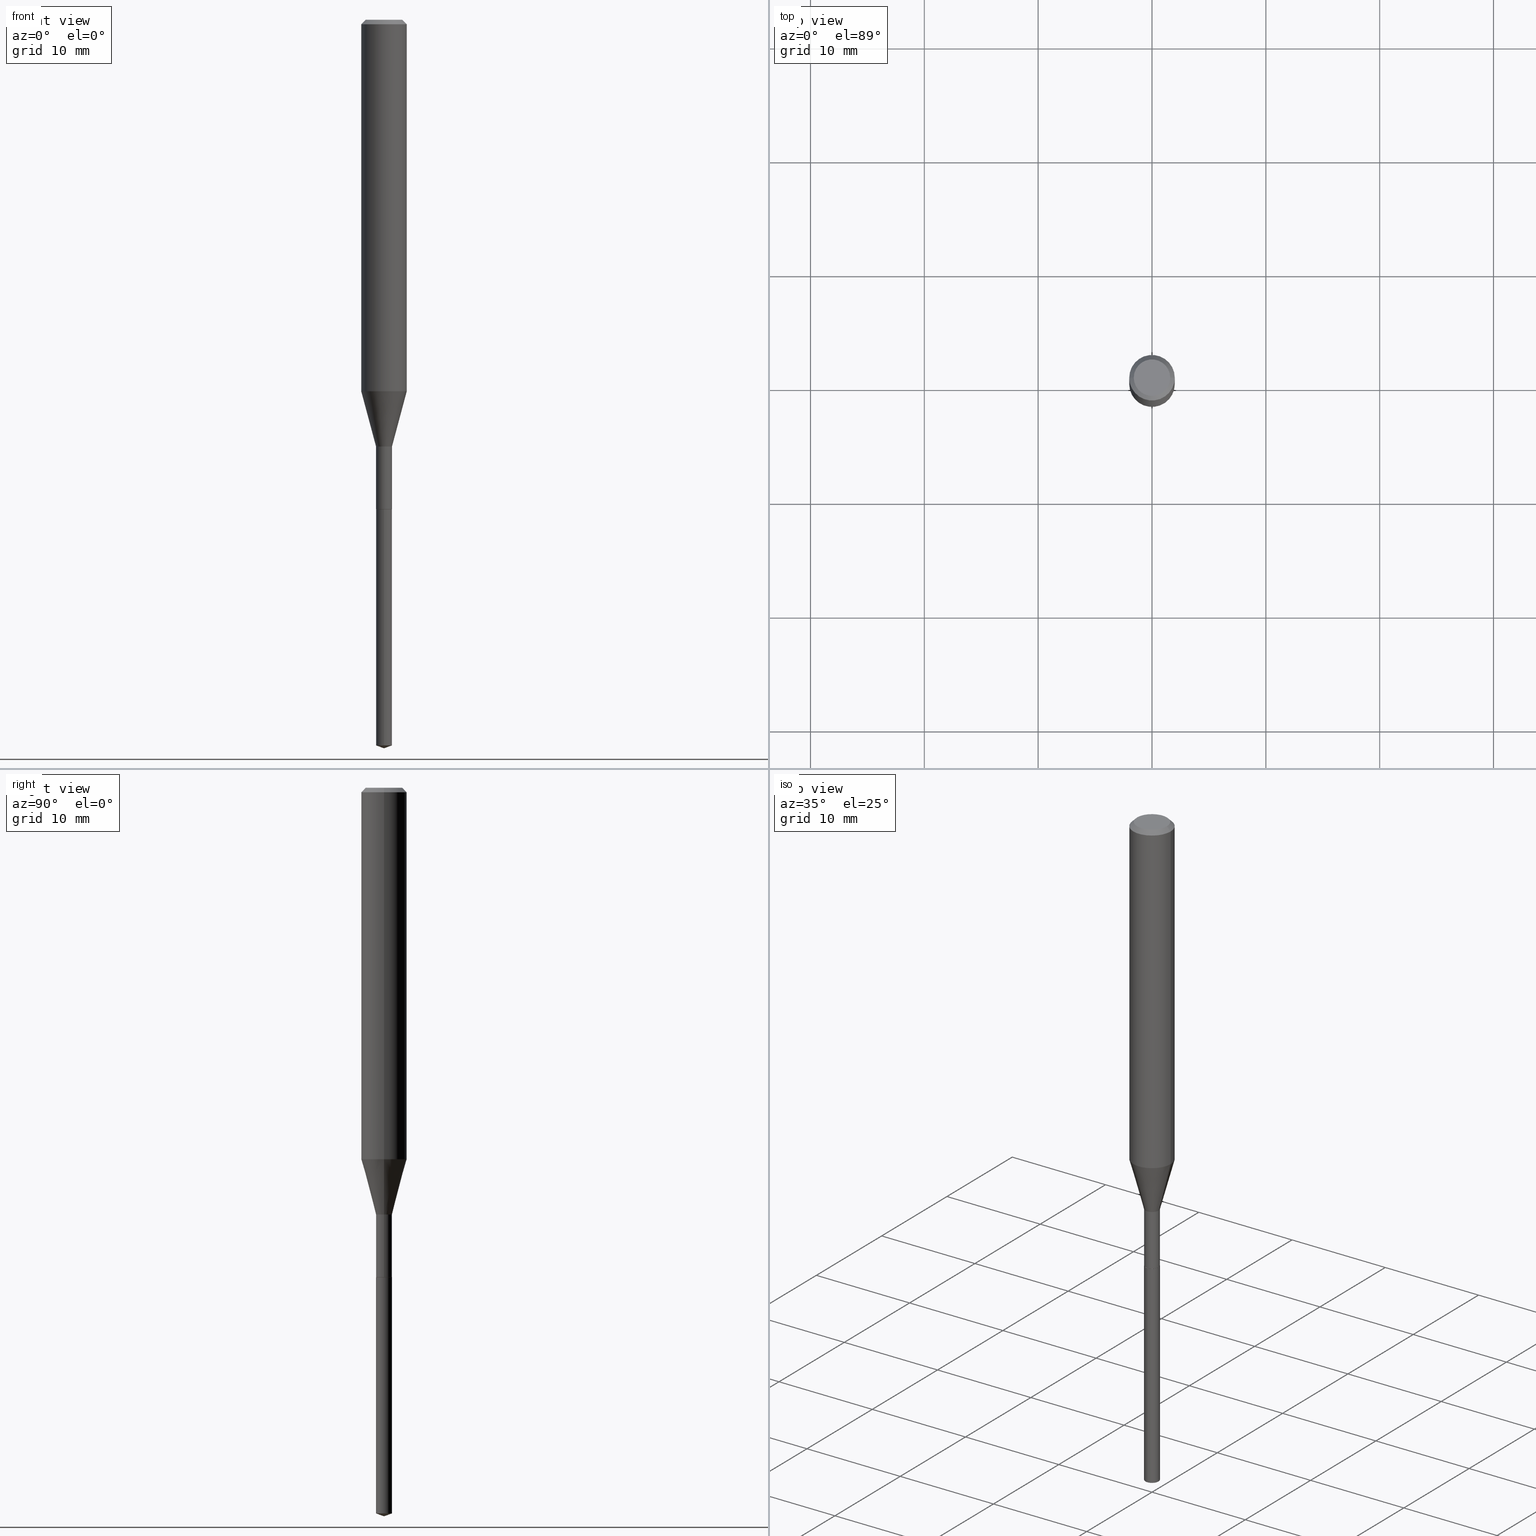
[diagram: canonical four-view strip — front | top / right | iso, engineering-drawing reading convention]
A machine part, canonical four-view strip (front | top / right | iso — engineering-drawing reading convention). The complete STEP part file that produces these views, byte-faithful:
ISO-10303-21;
HEADER;
FILE_DESCRIPTION (( 'STEP AP203' ),
    '1' );
FILE_NAME ('06035.STEP',
    '2024-04-23T19:05:51',
    ( '' ),
    ( '' ),
    'SwSTEP 2.0',
    'SolidWorks 2023',
    '' );
FILE_SCHEMA (( 'CONFIG_CONTROL_DESIGN' ));
ENDSEC;

DATA;
#1 = ORIENTED_EDGE ( 'NONE', *, *, #261, .T. ) ;
#2 = LINE ( 'NONE', #145, #117 ) ;
#3 = PERSON_AND_ORGANIZATION ( #426, #442 ) ;
#4 = ORIENTED_EDGE ( 'NONE', *, *, #261, .F. ) ;
#5 = CIRCLE ( 'NONE', #244, 0.02754999999999999116 ) ;
#6 = ORIENTED_EDGE ( 'NONE', *, *, #220, .F. ) ;
#7 = APPROVAL ( #66, 'UNSPECIFIED' ) ;
#8 = ORIENTED_EDGE ( 'NONE', *, *, #296, .F. ) ;
#9 = EDGE_CURVE ( 'NONE', #305, #456, #158, .T. ) ;
#10 = CARTESIAN_POINT ( 'NONE',  ( -0.02705000000000000113, -5.718526948504453054E-15, -1.692899999999999849 ) ) ;
#11 = AXIS2_PLACEMENT_3D ( 'NONE', #76, #154, #313 ) ;
#12 = AXIS2_PLACEMENT_3D ( 'NONE', #222, #228, #95 ) ;
#13 = DIRECTION ( 'NONE',  ( 1.000000000000000000, -6.982962677686258822E-15, 0.000000000000000000 ) ) ;
#14 = CALENDAR_DATE ( 2024, 23, 4 ) ;
#15 = CARTESIAN_POINT ( 'NONE',  ( -0.07875000000000008382, 5.595524044110794920E-16, -3.873661383575742696E-30 ) ) ;
#16 = ORIENTED_EDGE ( 'NONE', *, *, #390, .F. ) ;
#17 = CARTESIAN_POINT ( 'NONE',  ( 4.139934141990817236E-29, -5.910728758527560286E-15, -1.692899999999999849 ) ) ;
#18 = VERTEX_POINT ( 'NONE', #246 ) ;
#19 = DIRECTION ( 'NONE',  ( -2.438088387897960049E-29, 3.491481338843145188E-15, 1.000000000000000000 ) ) ;
#20 = VECTOR ( 'NONE', #267, 39.37007874015748854 ) ;
#21 = EDGE_CURVE ( 'NONE', #69, #209, #286, .T. ) ;
#22 = CARTESIAN_POINT ( 'NONE',  ( 4.139934141990817236E-29, -5.910728758527560286E-15, -1.692899999999999849 ) ) ;
#23 = AXIS2_PLACEMENT_3D ( 'NONE', #386, #290, #45 ) ;
#24 = AXIS2_PLACEMENT_3D ( 'NONE', #377, #268, #303 ) ;
#25 = CALENDAR_DATE ( 2024, 23, 4 ) ;
#26 = ADVANCED_FACE ( 'NONE', ( #465 ), #433, .T. ) ;
#27 = DIMENSIONAL_EXPONENTS ( 1.000000000000000000, 0.000000000000000000, 0.000000000000000000, 0.000000000000000000, 0.000000000000000000, 0.000000000000000000, 0.000000000000000000 ) ;
#28 = APPROVAL_DATE_TIME ( #331, #74 ) ;
#29 = DIRECTION ( 'NONE',  ( 2.445468806185136597E-29, -3.491481338843145583E-15, -1.000000000000000000 ) ) ;
#30 = APPROVAL_ROLE ( '' ) ;
#31 = DIRECTION ( 'NONE',  ( -2.444907786698359005E-29, 3.492284750679457290E-15, 1.000000000000000000 ) ) ;
#32 = ORIENTED_EDGE ( 'NONE', *, *, #79, .T. ) ;
#33 = CARTESIAN_POINT ( 'NONE',  ( 0.07875000000000000056, -6.048991419545733705E-16, -0.01575000000000009032 ) ) ;
#34 = VECTOR ( 'NONE', #243, 39.37007874015748143 ) ;
#35 = VERTEX_POINT ( 'NONE', #281 ) ;
#36 = DIRECTION ( 'NONE',  ( -2.445468806185136597E-29, 3.491481338843145583E-15, 1.000000000000000000 ) ) ;
#37 = ORIENTED_EDGE ( 'NONE', *, *, #21, .T. ) ;
#38 = ORIENTED_EDGE ( 'NONE', *, *, #399, .F. ) ;
#39 = CIRCLE ( 'NONE', #352, 0.02755000000000000157 ) ;
#40 = CYLINDRICAL_SURFACE ( 'NONE', #98, 0.07875000000000008382 ) ;
#41 = CC_DESIGN_APPROVAL ( #7, ( #131 ) ) ;
#42 = CARTESIAN_POINT ( 'NONE',  ( 6.136867880703221821E-29, -8.763131324286595835E-15, -2.509672620045966251 ) ) ;
#43 = CARTESIAN_POINT ( 'NONE',  ( -0.02754999999999998075, 1.957545237019074645E-16, -1.355166617365225689E-30 ) ) ;
#44 = EDGE_CURVE ( 'NONE', #406, #128, #323, .T. ) ;
#45 = DIRECTION ( 'NONE',  ( -6.982962677686265922E-15, -1.000000000000000000, 0.000000000000000000 ) ) ;
#46 = EDGE_LOOP ( 'NONE', ( #336, #121, #190, #269 ) ) ;
#47 = PLANE ( 'NONE',  #301 ) ;
#48 = DIRECTION ( 'NONE',  ( 1.000000000000000000, 0.000000000000000000, 0.000000000000000000 ) ) ;
#49 = CONICAL_SURFACE ( 'NONE', #330, 0.07875000000000000056, 0.7853981633974456145 ) ;
#50 = DIRECTION ( 'NONE',  ( -2.444907786698359005E-29, 3.492284750679457290E-15, 1.000000000000000000 ) ) ;
#51 = AXIS2_PLACEMENT_3D ( 'NONE', #70, #36, #259 ) ;
#52 = CARTESIAN_POINT ( 'NONE',  ( -1.923806217701952372E-16, -0.02755000000000876192, -2.509672620045966251 ) ) ;
#53 = DIRECTION ( 'NONE',  ( -2.445468806185136597E-29, 3.491481338843145583E-15, 1.000000000000000000 ) ) ;
#54 = CARTESIAN_POINT ( 'NONE',  ( 4.139934141990817236E-29, -5.910728758527560286E-15, -1.692899999999999849 ) ) ;
#55 = DIRECTION ( 'NONE',  ( -0.7071067811865454633, 2.468850131082235761E-15, -0.7071067811865493491 ) ) ;
#56 = ORIENTED_EDGE ( 'NONE', *, *, #346, .F. ) ;
#57 = CYLINDRICAL_SURFACE ( 'NONE', #363, 0.02754999999999998075 ) ;
#58 = EDGE_LOOP ( 'NONE', ( #448, #387, #277, #380 ) ) ;
#59 = PERSON_AND_ORGANIZATION ( #426, #442 ) ;
#60 = AXIS2_PLACEMENT_3D ( 'NONE', #224, #29, #179 ) ;
#61 = EDGE_CURVE ( 'NONE', #425, #438, #461, .T. ) ;
#62 = DATE_AND_TIME ( #126, #91 ) ;
#63 = DIRECTION ( 'NONE',  ( -2.445468806185136877E-29, 3.491481338843145188E-15, 1.000000000000000000 ) ) ;
#64 = ADVANCED_FACE ( 'NONE', ( #205 ), #40, .T. ) ;
#65 = AXIS2_PLACEMENT_3D ( 'NONE', #22, #297, #404 ) ;
#66 = APPROVAL_STATUS ( 'not_yet_approved' ) ;
#67 = CYLINDRICAL_SURFACE ( 'NONE', #217, 0.07875000000000008382 ) ;
#68 = CARTESIAN_POINT ( 'NONE',  ( 0.02705000000000000113, -6.099617898958974072E-15, -1.692899999999999849 ) ) ;
#69 = VERTEX_POINT ( 'NONE', #93 ) ;
#70 = CARTESIAN_POINT ( 'NONE',  ( 3.142229329679264219E-29, -4.486270705720130706E-15, -1.284918998652472943 ) ) ;
#71 = VECTOR ( 'NONE', #462, 39.37007874015748854 ) ;
#72 = EDGE_CURVE ( 'NONE', #456, #35, #39, .T. ) ;
#73 = VERTEX_POINT ( 'NONE', #204 ) ;
#74 = APPROVAL ( #443, 'UNSPECIFIED' ) ;
#75 = VERTEX_POINT ( 'NONE', #161 ) ;
#76 = CARTESIAN_POINT ( 'NONE',  ( -9.009482817470551861E-28, 1.286933758269121569E-13, 36.85037874015748116 ) ) ;
#77 = DIRECTION ( 'NONE',  ( 1.000000000000000000, -6.982962677686272233E-15, 0.000000000000000000 ) ) ;
#78 = CARTESIAN_POINT ( 'NONE',  ( 0.06300000000000000044, -5.137332111354472216E-16, -3.855188123712532709E-18 ) ) ;
#79 = EDGE_CURVE ( 'NONE', #140, #180, #338, .T. ) ;
#80 = AXIS2_PLACEMENT_3D ( 'NONE', #385, #231, #118 ) ;
#81 =( GEOMETRIC_REPRESENTATION_CONTEXT ( 3 ) GLOBAL_UNCERTAINTY_ASSIGNED_CONTEXT ( ( #146 ) ) GLOBAL_UNIT_ASSIGNED_CONTEXT ( ( #223, #218, #332 ) ) REPRESENTATION_CONTEXT ( 'NONE', 'WORKASPACE' ) );
#82 = CARTESIAN_POINT ( 'NONE',  ( 3.609511957929261074E-29, -5.153426456132482850E-15, -1.475999999999999757 ) ) ;
#83 = CARTESIAN_POINT ( 'NONE',  ( 0.000000000000000000, 0.000000000000000000, 0.000000000000000000 ) ) ;
#84 = DIRECTION ( 'NONE',  ( 1.000000000000000000, -6.982962677686273810E-15, 0.000000000000000000 ) ) ;
#85 = COORDINATED_UNIVERSAL_TIME_OFFSET ( 5, 0, .BEHIND. ) ;
#86 = FACE_OUTER_BOUND ( 'NONE', #149, .T. ) ;
#87 = LINE ( 'NONE', #249, #122 ) ;
#88 = ORIENTED_EDGE ( 'NONE', *, *, #125, .F. ) ;
#89 = DIRECTION ( 'NONE',  ( -1.000000000000000000, 6.982962677686265922E-15, 0.000000000000000000 ) ) ;
#90 = CLOSED_SHELL ( 'NONE', ( #486, #157, #471, #112, #26, #197, #342, #64, #202, #463, #247, #480 ) ) ;
#91 = LOCAL_TIME ( 15, 5, 51.00000000000000000, #322 ) ;
#92 = LINE ( 'NONE', #15, #302 ) ;
#93 = CARTESIAN_POINT ( 'NONE',  ( 1.957545237019690942E-16, 0.02754999999999408963, -1.692899999999999849 ) ) ;
#94 = CALENDAR_DATE ( 2024, 23, 4 ) ;
#95 = DIRECTION ( 'NONE',  ( 1.000000000000000000, -6.982962677686264344E-15, 0.000000000000000000 ) ) ;
#96 = PERSON_AND_ORGANIZATION ( #426, #442 ) ;
#97 = PERSON_AND_ORGANIZATION_ROLE ( 'classification_officer' ) ;
#98 = AXIS2_PLACEMENT_3D ( 'NONE', #129, #213, #253 ) ;
#99 = DIRECTION ( 'NONE',  ( -2.445468806185136597E-29, 3.491481338843145583E-15, 1.000000000000000000 ) ) ;
#100 = ORIENTED_EDGE ( 'NONE', *, *, #150, .F. ) ;
#101 = VECTOR ( 'NONE', #114, 39.37007874015748143 ) ;
#102 = DIRECTION ( 'NONE',  ( 1.000000000000000000, -6.982962677686273810E-15, 0.000000000000000000 ) ) ;
#103 = ORIENTED_EDGE ( 'NONE', *, *, #452, .T. ) ;
#104 = DIRECTION ( 'NONE',  ( 1.000000000000000000, -6.982962677686267499E-15, 4.876176775795935232E-29 ) ) ;
#105 = EDGE_CURVE ( 'NONE', #140, #18, #87, .T. ) ;
#106 = CARTESIAN_POINT ( 'NONE',  ( 0.07875000000000000056, -5.952550484112880131E-16, -0.01575000000000009032 ) ) ;
#107 = CARTESIAN_POINT ( 'NONE',  ( 4.138711407587725556E-29, -5.908983017858139571E-15, -1.692399999999999904 ) ) ;
#108 = ORIENTED_EDGE ( 'NONE', *, *, #72, .F. ) ;
#109 = AXIS2_PLACEMENT_3D ( 'NONE', #422, #430, #395 ) ;
#110 = CC_DESIGN_APPROVAL ( #403, ( #355 ) ) ;
#111 = EDGE_LOOP ( 'NONE', ( #1, #37 ) ) ;
#112 = ADVANCED_FACE ( 'NONE', ( #208 ), #138, .T. ) ;
#113 = EDGE_LOOP ( 'NONE', ( #100, #420, #241, #299 ) ) ;
#114 = DIRECTION ( 'NONE',  ( -2.445468806185136877E-29, 3.491481338843145188E-15, 1.000000000000000000 ) ) ;
#115 = CARTESIAN_POINT ( 'NONE',  ( 0.07875000000000008382, -5.499083108677941345E-16, 3.839989210939303220E-30 ) ) ;
#116 = CIRCLE ( 'NONE', #487, 0.02705000000000000113 ) ;
#117 = VECTOR ( 'NONE', #381, 39.37007874015748143 ) ;
#118 = DIRECTION ( 'NONE',  ( -6.982962677686265922E-15, -1.000000000000000000, 0.000000000000000000 ) ) ;
#119 = APPLICATION_PROTOCOL_DEFINITION ( 'international standard', 'config_control_design', 1994, #316 ) ;
#120 = DIRECTION ( 'NONE',  ( -2.444907786698359005E-29, 3.492284750679457290E-15, 1.000000000000000000 ) ) ;
#121 = ORIENTED_EDGE ( 'NONE', *, *, #79, .F. ) ;
#122 = VECTOR ( 'NONE', #55, 39.37007874015748854 ) ;
#123 = PRODUCT_DEFINITION_FORMATION_WITH_SPECIFIED_SOURCE ( 'ANY', '', #334, .NOT_KNOWN. ) ;
#124 = EDGE_LOOP ( 'NONE', ( #56, #485, #417, #310 ) ) ;
#125 = EDGE_CURVE ( 'NONE', #35, #456, #450, .T. ) ;
#126 = CALENDAR_DATE ( 2024, 23, 4 ) ;
#127 = CARTESIAN_POINT ( 'NONE',  ( 3.609511957929261074E-29, -5.153426456132482850E-15, -1.475999999999999757 ) ) ;
#128 = VERTEX_POINT ( 'NONE', #176 ) ;
#129 = CARTESIAN_POINT ( 'NONE',  ( 0.000000000000000000, 0.000000000000000000, 0.000000000000000000 ) ) ;
#130 = CIRCLE ( 'NONE', #191, 0.02705000000000000113 ) ;
#131 = SECURITY_CLASSIFICATION ( '', '', #215 ) ;
#132 = PERSON_AND_ORGANIZATION ( #426, #442 ) ;
#133 = CC_DESIGN_PERSON_AND_ORGANIZATION_ASSIGNMENT ( #59, #440, ( #355 ) ) ;
#134 = FACE_OUTER_BOUND ( 'NONE', #309, .T. ) ;
#135 = CARTESIAN_POINT ( 'NONE',  ( 4.139934141990817236E-29, -5.910728758527560286E-15, -1.692899999999999849 ) ) ;
#136 = DIRECTION ( 'NONE',  ( 1.000000000000000000, -6.982962677686265922E-15, 0.000000000000000000 ) ) ;
#137 = PRODUCT_RELATED_PRODUCT_CATEGORY ( 'detail', '', ( #334 ) ) ;
#138 = CONICAL_SURFACE ( 'NONE', #167, 0.02754999999999997035, 0.2617993877991499629 ) ;
#139 = CARTESIAN_POINT ( 'NONE',  ( -0.06300000000000000044, 4.674220642376242452E-16, -3.855188123719040041E-18 ) ) ;
#140 = VERTEX_POINT ( 'NONE', #139 ) ;
#141 = LINE ( 'NONE', #68, #307 ) ;
#142 = EDGE_CURVE ( 'NONE', #73, #212, #116, .T. ) ;
#143 = ORIENTED_EDGE ( 'NONE', *, *, #207, .F. ) ;
#144 = DIRECTION ( 'NONE',  ( 0.7071067811866109665, -2.468850131082920887E-15, 0.7071067811864841790 ) ) ;
#145 = CARTESIAN_POINT ( 'NONE',  ( -1.923806217702152546E-16, -0.02755000000000591351, -1.692899999999999849 ) ) ;
#146 = UNCERTAINTY_MEASURE_WITH_UNIT (LENGTH_MEASURE( 1.000000000000000082E-05 ), #223, 'distance_accuracy_value', 'NONE');
#147 = EDGE_LOOP ( 'NONE', ( #378, #400, #103, #478 ) ) ;
#148 = APPROVAL_STATUS ( 'not_yet_approved' ) ;
#149 = EDGE_LOOP ( 'NONE', ( #274, #194, #4, #153 ) ) ;
#150 = EDGE_CURVE ( 'NONE', #128, #425, #264, .T. ) ;
#151 = CIRCLE ( 'NONE', #51, 0.07875000000000015321 ) ;
#152 = ORIENTED_EDGE ( 'NONE', *, *, #9, .F. ) ;
#153 = ORIENTED_EDGE ( 'NONE', *, *, #437, .F. ) ;
#154 = DIRECTION ( 'NONE',  ( -2.444907786698359005E-29, 3.492284750679457290E-15, 1.000000000000000000 ) ) ;
#155 = AXIS2_PLACEMENT_3D ( 'NONE', #169, #326, #477 ) ;
#156 = DIRECTION ( 'NONE',  ( 1.000000000000000000, -6.982962677686266711E-15, 4.876176775795936353E-29 ) ) ;
#157 = ADVANCED_FACE ( 'NONE', ( #221 ), #201, .T. ) ;
#158 = LINE ( 'NONE', #419, #256 ) ;
#159 = PLANE ( 'NONE',  #393 ) ;
#160 = PLANE ( 'NONE',  #155 ) ;
#161 = CARTESIAN_POINT ( 'NONE',  ( -0.02754999999999998769, -5.335450213293403869E-15, -1.692399999999999904 ) ) ;
#162 = DIRECTION ( 'NONE',  ( -2.445468806185136597E-29, 3.491481338843145583E-15, 1.000000000000000000 ) ) ;
#163 = CARTESIAN_POINT ( 'NONE',  ( 3.609511957929261074E-29, -5.153426456132482850E-15, -1.475999999999999757 ) ) ;
#164 = EDGE_CURVE ( 'NONE', #180, #348, #489, .T. ) ;
#165 = ORIENTED_EDGE ( 'NONE', *, *, #294, .F. ) ;
#166 = VECTOR ( 'NONE', #415, 39.37007874015748854 ) ;
#167 = AXIS2_PLACEMENT_3D ( 'NONE', #163, #405, #183 ) ;
#168 = CARTESIAN_POINT ( 'NONE',  ( 0.02705000000000000113, -6.099617898958974072E-15, -1.692899999999999849 ) ) ;
#169 = CARTESIAN_POINT ( 'NONE',  ( 4.713871149261278955E-47, -6.730158695841834933E-33, -1.927594061857933439E-18 ) ) ;
#170 = ORIENTED_EDGE ( 'NONE', *, *, #294, .T. ) ;
#171 = AXIS2_PLACEMENT_3D ( 'NONE', #280, #341, #136 ) ;
#172 = CARTESIAN_POINT ( 'NONE',  ( 4.139934141990817236E-29, -5.910728758527560286E-15, -1.692899999999999849 ) ) ;
#173 = DATE_AND_TIME ( #25, #245 ) ;
#174 = PRODUCT_DEFINITION_SHAPE ( 'NONE', 'NONE',  #355 ) ;
#175 = CC_DESIGN_DATE_AND_TIME_ASSIGNMENT ( #173, #260, ( #131 ) ) ;
#176 = CARTESIAN_POINT ( 'NONE',  ( -0.02754999999999997035, -5.335450213293403869E-15, -1.475999999999999757 ) ) ;
#177 = ORIENTED_EDGE ( 'NONE', *, *, #452, .F. ) ;
#178 = COORDINATED_UNIVERSAL_TIME_OFFSET ( 5, 0, .BEHIND. ) ;
#179 = DIRECTION ( 'NONE',  ( -1.000000000000000000, 6.982962677686265922E-15, 0.000000000000000000 ) ) ;
#180 = VERTEX_POINT ( 'NONE', #78 ) ;
#181 = EDGE_CURVE ( 'NONE', #348, #18, #278, .T. ) ;
#182 = COORDINATED_UNIVERSAL_TIME_OFFSET ( 5, 0, .BEHIND. ) ;
#183 = DIRECTION ( 'NONE',  ( 1.000000000000000000, -6.982962677686264344E-15, 0.000000000000000000 ) ) ;
#184 = EDGE_CURVE ( 'NONE', #305, #35, #211, .T. ) ;
#185 = DATE_TIME_ROLE ( 'creation_date' ) ;
#186 = ORIENTED_EDGE ( 'NONE', *, *, #181, .F. ) ;
#187 = EDGE_LOOP ( 'NONE', ( #152, #225, #108 ) ) ;
#188 = EDGE_LOOP ( 'NONE', ( #6, #327, #459, #275 ) ) ;
#189 = ADVANCED_FACE ( 'NONE', ( #86 ), #469, .T. ) ;
#190 = ORIENTED_EDGE ( 'NONE', *, *, #105, .T. ) ;
#191 = AXIS2_PLACEMENT_3D ( 'NONE', #54, #162, #84 ) ;
#192 = CIRCLE ( 'NONE', #24, 0.06300000000000000044 ) ;
#193 = DIRECTION ( 'NONE',  ( -2.445468806185136597E-29, 3.491481338843145583E-15, 1.000000000000000000 ) ) ;
#194 = ORIENTED_EDGE ( 'NONE', *, *, #220, .T. ) ;
#195 = FACE_OUTER_BOUND ( 'NONE', #111, .T. ) ;
#196 = DIRECTION ( 'NONE',  ( -2.445468806185136877E-29, 3.491481338843145188E-15, 1.000000000000000000 ) ) ;
#197 = ADVANCED_FACE ( 'NONE', ( #396 ), #57, .T. ) ;
#198 = FACE_OUTER_BOUND ( 'NONE', #46, .T. ) ;
#199 = DIRECTION ( 'NONE',  ( -0.7071067811866109665, 7.493145998870584508E-15, 0.7071067811864841790 ) ) ;
#200 = CARTESIAN_POINT ( 'NONE',  ( 6.160434150143854806E-29, -8.799509886287028244E-15, -2.519699999999999829 ) ) ;
#201 = CONICAL_SURFACE ( 'NONE', #60, 0.07875000000000000056, 0.7853981633974456145 ) ;
#202 = ADVANCED_FACE ( 'NONE', ( #198 ), #49, .T. ) ;
#203 = DIRECTION ( 'NONE',  ( -2.445468806185136597E-29, 3.491481338843145583E-15, 1.000000000000000000 ) ) ;
#204 = CARTESIAN_POINT ( 'NONE',  ( -0.02705000000000000113, -5.715877721330343431E-15, -1.692899999999999849 ) ) ;
#205 = FACE_OUTER_BOUND ( 'NONE', #343, .T. ) ;
#206 = CARTESIAN_POINT ( 'NONE',  ( -9.009482817470551861E-28, 1.286933758269121569E-13, 36.85037874015748116 ) ) ;
#207 = EDGE_CURVE ( 'NONE', #212, #73, #130, .T. ) ;
#208 = FACE_OUTER_BOUND ( 'NONE', #335, .T. ) ;
#209 = VERTEX_POINT ( 'NONE', #466 ) ;
#210 = MANIFOLD_SOLID_BREP ( 'Body-Move/Copy2[2]', #90 ) ;
#211 = LINE ( 'NONE', #392, #71 ) ;
#212 = VERTEX_POINT ( 'NONE', #168 ) ;
#213 = DIRECTION ( 'NONE',  ( -2.445468806185136597E-29, 3.491481338843145583E-15, 1.000000000000000000 ) ) ;
#214 = DATE_AND_TIME ( #14, #273 ) ;
#215 = SECURITY_CLASSIFICATION_LEVEL ( 'unclassified' ) ;
#216 = VECTOR ( 'NONE', #242, 39.37007874015748143 ) ;
#217 = AXIS2_PLACEMENT_3D ( 'NONE', #340, #329, #104 ) ;
#218 =( NAMED_UNIT ( * ) PLANE_ANGLE_UNIT ( ) SI_UNIT ( $, .RADIAN. ) );
#219 =( LENGTH_UNIT ( ) NAMED_UNIT ( * ) SI_UNIT ( $, .METRE. ) );
#220 = EDGE_CURVE ( 'NONE', #35, #69, #356, .T. ) ;
#221 = FACE_OUTER_BOUND ( 'NONE', #124, .T. ) ;
#222 = CARTESIAN_POINT ( 'NONE',  ( 3.609511957929261074E-29, -5.153426456132482850E-15, -1.475999999999999757 ) ) ;
#223 =( CONVERSION_BASED_UNIT ( 'INCH', #481 ) LENGTH_UNIT ( ) NAMED_UNIT ( #27 ) );
#224 = CARTESIAN_POINT ( 'NONE',  ( 3.851613369741612172E-31, -5.499083108677985842E-17, -0.01575000000000009032 ) ) ;
#225 = ORIENTED_EDGE ( 'NONE', *, *, #184, .T. ) ;
#226 = CONICAL_SURFACE ( 'NONE', #11, 108.1684023407358950, 1.221730476396038823 ) ;
#227 = CC_DESIGN_SECURITY_CLASSIFICATION ( #131, ( #123 ) ) ;
#228 = DIRECTION ( 'NONE',  ( -2.445468806185136597E-29, 3.491481338843145583E-15, 1.000000000000000000 ) ) ;
#229 = ORIENTED_EDGE ( 'NONE', *, *, #390, .T. ) ;
#230 = EDGE_LOOP ( 'NONE', ( #32, #455 ) ) ;
#231 = DIRECTION ( 'NONE',  ( -2.444907786698359005E-29, 3.492284750679457290E-15, 1.000000000000000000 ) ) ;
#232 = CARTESIAN_POINT ( 'NONE',  ( 3.851613369741612172E-31, -5.499083108677985842E-17, -0.01575000000000009032 ) ) ;
#233 = CC_DESIGN_PERSON_AND_ORGANIZATION_ASSIGNMENT ( #96, #97, ( #131 ) ) ;
#234 = DIRECTION ( 'NONE',  ( 0.2588190451025212391, 1.565188264969622362E-15, 0.9659258262890679791 ) ) ;
#235 = DIRECTION ( 'NONE',  ( -2.445468806185136597E-29, 3.491481338843145583E-15, 1.000000000000000000 ) ) ;
#236 = APPLICATION_PROTOCOL_DEFINITION ( 'international standard', 'config_control_design', 1994, #484 ) ;
#237 = EDGE_CURVE ( 'NONE', #75, #379, #5, .T. ) ;
#238 = FACE_OUTER_BOUND ( 'NONE', #188, .T. ) ;
#239 = PERSON_AND_ORGANIZATION_ROLE ( 'design_owner' ) ;
#240 = ADVANCED_FACE ( 'NONE', ( #238 ), #389, .T. ) ;
#241 = ORIENTED_EDGE ( 'NONE', *, *, #296, .T. ) ;
#242 = DIRECTION ( 'NONE',  ( -2.444907786698359285E-29, 3.492284750679457685E-15, 1.000000000000000000 ) ) ;
#243 = DIRECTION ( 'NONE',  ( -2.445468806185136877E-29, 3.491481338843145188E-15, 1.000000000000000000 ) ) ;
#244 = AXIS2_PLACEMENT_3D ( 'NONE', #284, #358, #13 ) ;
#245 = LOCAL_TIME ( 15, 5, 51.00000000000000000, #365 ) ;
#246 = CARTESIAN_POINT ( 'NONE',  ( -0.07875000000000000056, -1.711078363992374641E-15, -0.01575000000000009032 ) ) ;
#247 = ADVANCED_FACE ( 'NONE', ( #472 ), #159, .F. ) ;
#248 = FACE_OUTER_BOUND ( 'NONE', #250, .T. ) ;
#249 = CARTESIAN_POINT ( 'NONE',  ( -0.07875000000000000056, 4.949174797810136167E-16, -0.01575000000000009032 ) ) ;
#250 = EDGE_LOOP ( 'NONE', ( #445, #369, #88 ) ) ;
#251 = DATE_AND_TIME ( #283, #364 ) ;
#252 = DIRECTION ( 'NONE',  ( 1.000000000000000000, -6.982962677686265922E-15, 4.876176775795935793E-29 ) ) ;
#253 = DIRECTION ( 'NONE',  ( 1.000000000000000000, -6.982962677686267499E-15, 4.876176775795935232E-29 ) ) ;
#254 = ORIENTED_EDGE ( 'NONE', *, *, #328, .F. ) ;
#255 = FACE_OUTER_BOUND ( 'NONE', #397, .T. ) ;
#256 = VECTOR ( 'NONE', #460, 39.37007874015748143 ) ;
#257 = APPROVAL_PERSON_ORGANIZATION ( #413, #74, #30 ) ;
#258 = ADVANCED_FACE ( 'NONE', ( #248 ), #435, .T. ) ;
#259 = DIRECTION ( 'NONE',  ( 1.000000000000000000, -6.982962677686272233E-15, 0.000000000000000000 ) ) ;
#260 = DATE_TIME_ROLE ( 'classification_date' ) ;
#261 = EDGE_CURVE ( 'NONE', #209, #69, #262, .T. ) ;
#262 = CIRCLE ( 'NONE', #23, 0.02755000000000000157 ) ;
#263 = AXIS2_PLACEMENT_3D ( 'NONE', #83, #317, #48 ) ;
#264 = LINE ( 'NONE', #411, #20 ) ;
#265 = ORIENTED_EDGE ( 'NONE', *, *, #61, .T. ) ;
#266 = ADVANCED_FACE ( 'NONE', ( #195 ), #47, .F. ) ;
#267 = DIRECTION ( 'NONE',  ( -0.2588190451025212391, 5.211531920934549464E-15, 0.9659258262890679791 ) ) ;
#268 = DIRECTION ( 'NONE',  ( -2.445468806185136597E-29, 3.491481338843145583E-15, 1.000000000000000000 ) ) ;
#269 = ORIENTED_EDGE ( 'NONE', *, *, #328, .T. ) ;
#270 = FACE_OUTER_BOUND ( 'NONE', #58, .T. ) ;
#271 = DIRECTION ( 'NONE',  ( -2.445468806185136597E-29, 3.491481338843145583E-15, 1.000000000000000000 ) ) ;
#272 = VECTOR ( 'NONE', #234, 39.37007874015748854 ) ;
#273 = LOCAL_TIME ( 15, 5, 51.00000000000000000, #85 ) ;
#274 = ORIENTED_EDGE ( 'NONE', *, *, #72, .T. ) ;
#275 = ORIENTED_EDGE ( 'NONE', *, *, #21, .F. ) ;
#276 = CC_DESIGN_PERSON_AND_ORGANIZATION_ASSIGNMENT ( #304, #444, ( #123 ) ) ;
#277 = ORIENTED_EDGE ( 'NONE', *, *, #333, .T. ) ;
#278 = CIRCLE ( 'NONE', #401, 0.07875000000000000056 ) ;
#279 = VECTOR ( 'NONE', #199, 39.37007874015748143 ) ;
#280 = CARTESIAN_POINT ( 'NONE',  ( 3.851613369741612172E-31, -5.499083108677985842E-17, -0.01575000000000009032 ) ) ;
#281 = CARTESIAN_POINT ( 'NONE',  ( 1.957545237019688970E-16, 0.02754999999999123081, -2.509672620045966251 ) ) ;
#282 = CARTESIAN_POINT ( 'NONE',  ( 0.000000000000000000, 0.000000000000000000, 0.000000000000000000 ) ) ;
#283 = CALENDAR_DATE ( 2024, 23, 4 ) ;
#284 = CARTESIAN_POINT ( 'NONE',  ( 4.138711407587725556E-29, -5.908983017858139571E-15, -1.692399999999999904 ) ) ;
#285 = DIRECTION ( 'NONE',  ( 1.000000000000000000, -6.982962677686265922E-15, 4.875905316334701673E-29 ) ) ;
#286 = CIRCLE ( 'NONE', #80, 0.02755000000000000157 ) ;
#287 = AXIS2_PLACEMENT_3D ( 'NONE', #172, #368, #102 ) ;
#288 = EDGE_LOOP ( 'NONE', ( #143, #324 ) ) ;
#289 = CC_DESIGN_DATE_AND_TIME_ASSIGNMENT ( #214, #185, ( #355 ) ) ;
#290 = DIRECTION ( 'NONE',  ( -2.444907786698359005E-29, 3.492284750679457290E-15, 1.000000000000000000 ) ) ;
#291 = CARTESIAN_POINT ( 'NONE',  ( 0.07875000000000015321, -5.036179016587925630E-15, -1.284918998652472943 ) ) ;
#292 = ORIENTED_EDGE ( 'NONE', *, *, #429, .T. ) ;
#293 = DIRECTION ( 'NONE',  ( -2.445468806185136597E-29, 3.491481338843145583E-15, 1.000000000000000000 ) ) ;
#294 = EDGE_CURVE ( 'NONE', #438, #348, #407, .T. ) ;
#295 = AXIS2_PLACEMENT_3D ( 'NONE', #82, #235, #468 ) ;
#296 = EDGE_CURVE ( 'NONE', #406, #438, #464, .T. ) ;
#297 = DIRECTION ( 'NONE',  ( -2.445468806185136597E-29, 3.491481338843145583E-15, 1.000000000000000000 ) ) ;
#298 = DIRECTION ( 'NONE',  ( 1.000000000000000000, -6.982962677686273810E-15, 0.000000000000000000 ) ) ;
#299 = ORIENTED_EDGE ( 'NONE', *, *, #61, .F. ) ;
#300 = FACE_OUTER_BOUND ( 'NONE', #113, .T. ) ;
#301 = AXIS2_PLACEMENT_3D ( 'NONE', #351, #479, #357 ) ;
#302 = VECTOR ( 'NONE', #63, 39.37007874015748143 ) ;
#303 = DIRECTION ( 'NONE',  ( 1.000000000000000000, -6.982962677686265922E-15, 4.875905316334701673E-29 ) ) ;
#304 = PERSON_AND_ORGANIZATION ( #426, #442 ) ;
#305 = VERTEX_POINT ( 'NONE', #200 ) ;
#306 = ORIENTED_EDGE ( 'NONE', *, *, #333, .F. ) ;
#307 = VECTOR ( 'NONE', #144, 39.37007874015748143 ) ;
#308 = CIRCLE ( 'NONE', #409, 0.02754999999999999116 ) ;
#309 = EDGE_LOOP ( 'NONE', ( #418, #292, #16, #306 ) ) ;
#310 = ORIENTED_EDGE ( 'NONE', *, *, #105, .F. ) ;
#311 = EDGE_LOOP ( 'NONE', ( #229, #370, #360, #177 ) ) ;
#312 = ADVANCED_FACE ( 'NONE', ( #349 ), #226, .T. ) ;
#313 = DIRECTION ( 'NONE',  ( -6.982962677686268288E-15, -1.000000000000000000, 3.475157955500642117E-15 ) ) ;
#314 = VECTOR ( 'NONE', #196, 39.37007874015748143 ) ;
#315 = AXIS2_PLACEMENT_3D ( 'NONE', #127, #293, #439 ) ;
#316 = APPLICATION_CONTEXT ( 'configuration controlled 3d designs of mechanical parts and assemblies' ) ;
#317 = DIRECTION ( 'NONE',  ( 0.000000000000000000, 0.000000000000000000, 1.000000000000000000 ) ) ;
#318 = CARTESIAN_POINT ( 'NONE',  ( 0.02754999999999998075, -1.923806217702565219E-16, 1.343386701731779458E-30 ) ) ;
#319 = CARTESIAN_POINT ( 'NONE',  ( 4.139934141990817236E-29, -5.910728758527560286E-15, -1.692899999999999849 ) ) ;
#320 = CARTESIAN_POINT ( 'NONE',  ( 9.427742298522557911E-47, -1.346031739168366987E-32, -3.855188123715866879E-18 ) ) ;
#321 = DIRECTION ( 'NONE',  ( -6.982962677686265922E-15, -1.000000000000000000, 0.000000000000000000 ) ) ;
#322 = COORDINATED_UNIVERSAL_TIME_OFFSET ( 5, 0, .BEHIND. ) ;
#323 = CIRCLE ( 'NONE', #295, 0.02754999999999997035 ) ;
#324 = ORIENTED_EDGE ( 'NONE', *, *, #142, .F. ) ;
#325 = DIRECTION ( 'NONE',  ( -2.444907786698359005E-29, 3.492284750679457290E-15, 1.000000000000000000 ) ) ;
#326 = DIRECTION ( 'NONE',  ( 2.438088387897960049E-29, -3.491481338843145188E-15, -1.000000000000000000 ) ) ;
#327 = ORIENTED_EDGE ( 'NONE', *, *, #125, .T. ) ;
#328 = EDGE_CURVE ( 'NONE', #18, #348, #441, .T. ) ;
#329 = DIRECTION ( 'NONE',  ( -2.445468806185136597E-29, 3.491481338843145583E-15, 1.000000000000000000 ) ) ;
#330 = AXIS2_PLACEMENT_3D ( 'NONE', #431, #434, #89 ) ;
#331 = DATE_AND_TIME ( #94, #373 ) ;
#332 =( NAMED_UNIT ( * ) SI_UNIT ( $, .STERADIAN. ) SOLID_ANGLE_UNIT ( ) );
#333 = EDGE_CURVE ( 'NONE', #212, #379, #141, .T. ) ;
#334 = PRODUCT ( '06035', '06035', '', ( #383 ) ) ;
#335 = EDGE_LOOP ( 'NONE', ( #414, #374, #38, #8 ) ) ;
#336 = ORIENTED_EDGE ( 'NONE', *, *, #164, .F. ) ;
#337 = APPROVAL_DATE_TIME ( #251, #7 ) ;
#338 = CIRCLE ( 'NONE', #408, 0.06300000000000000044 ) ;
#339 = APPROVAL_PERSON_ORGANIZATION ( #410, #7, #366 ) ;
#340 = CARTESIAN_POINT ( 'NONE',  ( 0.000000000000000000, 0.000000000000000000, 0.000000000000000000 ) ) ;
#341 = DIRECTION ( 'NONE',  ( -2.445468806185136597E-29, 3.491481338843145583E-15, 1.000000000000000000 ) ) ;
#342 = ADVANCED_FACE ( 'NONE', ( #300 ), #458, .T. ) ;
#343 = EDGE_LOOP ( 'NONE', ( #344, #265, #170, #254 ) ) ;
#344 = ORIENTED_EDGE ( 'NONE', *, *, #451, .F. ) ;
#345 = APPROVAL_PERSON_ORGANIZATION ( #3, #403, #432 ) ;
#346 = EDGE_CURVE ( 'NONE', #180, #140, #192, .T. ) ;
#347 = DIRECTION ( 'NONE',  ( 1.000000000000000000, -6.982962677686265922E-15, 0.000000000000000000 ) ) ;
#348 = VERTEX_POINT ( 'NONE', #33 ) ;
#349 = FACE_OUTER_BOUND ( 'NONE', #187, .T. ) ;
#350 = CARTESIAN_POINT ( 'NONE',  ( -0.07875000000000015321, -3.926718301309051116E-15, -1.284918998652472943 ) ) ;
#351 = CARTESIAN_POINT ( 'NONE',  ( 4.139934141990817236E-29, -5.910728758527560286E-15, -1.692899999999999849 ) ) ;
#352 = AXIS2_PLACEMENT_3D ( 'NONE', #361, #394, #483 ) ;
#353 = LINE ( 'NONE', #318, #34 ) ;
#354 = CARTESIAN_POINT ( 'NONE',  ( 4.139934141990817236E-29, -5.910728758527560286E-15, -1.692899999999999849 ) ) ;
#355 = PRODUCT_DEFINITION ( 'UNKNOWN', '', #123, #371 ) ;
#356 = LINE ( 'NONE', #427, #216 ) ;
#357 = DIRECTION ( 'NONE',  ( 6.982962677686265922E-15, 1.000000000000000000, -3.492284750679457685E-15 ) ) ;
#358 = DIRECTION ( 'NONE',  ( -2.445468806185136597E-29, 3.491481338843145583E-15, 1.000000000000000000 ) ) ;
#359 = CLOSED_SHELL ( 'NONE', ( #189, #312, #258, #240, #266 ) ) ;
#360 = ORIENTED_EDGE ( 'NONE', *, *, #44, .F. ) ;
#361 = CARTESIAN_POINT ( 'NONE',  ( 6.136867880703221821E-29, -8.763131324286595835E-15, -2.509672620045966251 ) ) ;
#362 = LINE ( 'NONE', #43, #101 ) ;
#363 = AXIS2_PLACEMENT_3D ( 'NONE', #282, #203, #156 ) ;
#364 = LOCAL_TIME ( 15, 5, 51.00000000000000000, #178 ) ;
#365 = COORDINATED_UNIVERSAL_TIME_OFFSET ( 5, 0, .BEHIND. ) ;
#366 = APPROVAL_ROLE ( '' ) ;
#367 = MANIFOLD_SOLID_BREP ( 'Body-Move/Copy2[1]', #359 ) ;
#368 = DIRECTION ( 'NONE',  ( -2.445468806185136597E-29, 3.491481338843145583E-15, 1.000000000000000000 ) ) ;
#369 = ORIENTED_EDGE ( 'NONE', *, *, #9, .T. ) ;
#370 = ORIENTED_EDGE ( 'NONE', *, *, #412, .T. ) ;
#371 = DESIGN_CONTEXT ( 'detailed design', #316, 'design' ) ;
#372 = AXIS2_PLACEMENT_3D ( 'NONE', #17, #120, #398 ) ;
#373 = LOCAL_TIME ( 15, 5, 51.00000000000000000, #182 ) ;
#374 = ORIENTED_EDGE ( 'NONE', *, *, #150, .T. ) ;
#375 = ORIENTED_EDGE ( 'NONE', *, *, #399, .T. ) ;
#376 = ADVANCED_BREP_SHAPE_REPRESENTATION ( '06035', ( #367, #210, #263 ), #81 ) ;
#377 = CARTESIAN_POINT ( 'NONE',  ( 9.427742298522557911E-47, -1.346031739168366987E-32, -3.855188123715866879E-18 ) ) ;
#378 = ORIENTED_EDGE ( 'NONE', *, *, #412, .F. ) ;
#379 = VERTEX_POINT ( 'NONE', #454 ) ;
#380 = ORIENTED_EDGE ( 'NONE', *, *, #237, .F. ) ;
#381 = DIRECTION ( 'NONE',  ( -2.444907786698359285E-29, 3.492284750679457685E-15, 1.000000000000000000 ) ) ;
#382 = CARTESIAN_POINT ( 'NONE',  ( 3.142229329679264219E-29, -4.486270705720130706E-15, -1.284918998652472943 ) ) ;
#383 = MECHANICAL_CONTEXT ( 'NONE', #484, 'mechanical' ) ;
#384 = CONICAL_SURFACE ( 'NONE', #65, 0.02705000000000000113, 0.7853981633975379850 ) ;
#385 = CARTESIAN_POINT ( 'NONE',  ( 4.139934141990817236E-29, -5.910728758527560286E-15, -1.692899999999999849 ) ) ;
#386 = CARTESIAN_POINT ( 'NONE',  ( 4.139934141990817236E-29, -5.910728758527560286E-15, -1.692899999999999849 ) ) ;
#387 = ORIENTED_EDGE ( 'NONE', *, *, #142, .T. ) ;
#388 = LINE ( 'NONE', #10, #279 ) ;
#389 = CYLINDRICAL_SURFACE ( 'NONE', #474, 0.02755000000000000157 ) ;
#390 = EDGE_CURVE ( 'NONE', #379, #75, #308, .T. ) ;
#391 = CC_DESIGN_PERSON_AND_ORGANIZATION_ASSIGNMENT ( #428, #239, ( #334 ) ) ;
#392 = CARTESIAN_POINT ( 'NONE',  ( 6.162350306293062347E-29, -8.796789694491643007E-15, -2.519699999999999829 ) ) ;
#393 = AXIS2_PLACEMENT_3D ( 'NONE', #319, #19, #252 ) ;
#394 = DIRECTION ( 'NONE',  ( -2.444907786698359005E-29, 3.492284750679457290E-15, 1.000000000000000000 ) ) ;
#395 = DIRECTION ( 'NONE',  ( 1.000000000000000000, -6.982962677686266711E-15, 4.876176775795936353E-29 ) ) ;
#396 = FACE_OUTER_BOUND ( 'NONE', #147, .T. ) ;
#397 = EDGE_LOOP ( 'NONE', ( #375, #490, #186, #165 ) ) ;
#398 = DIRECTION ( 'NONE',  ( -6.982962677686265922E-15, -1.000000000000000000, 0.000000000000000000 ) ) ;
#399 = EDGE_CURVE ( 'NONE', #438, #425, #151, .T. ) ;
#400 = ORIENTED_EDGE ( 'NONE', *, *, #237, .T. ) ;
#401 = AXIS2_PLACEMENT_3D ( 'NONE', #232, #193, #347 ) ;
#402 = CARTESIAN_POINT ( 'NONE',  ( 0.02754999999999997035, -5.345807077902738854E-15, -1.475999999999999757 ) ) ;
#403 = APPROVAL ( #148, 'UNSPECIFIED' ) ;
#404 = DIRECTION ( 'NONE',  ( 1.000000000000000000, -6.982962677686273810E-15, 0.000000000000000000 ) ) ;
#405 = DIRECTION ( 'NONE',  ( -2.445468806185136597E-29, 3.491481338843145583E-15, 1.000000000000000000 ) ) ;
#406 = VERTEX_POINT ( 'NONE', #402 ) ;
#407 = LINE ( 'NONE', #115, #314 ) ;
#408 = AXIS2_PLACEMENT_3D ( 'NONE', #320, #470, #285 ) ;
#409 = AXIS2_PLACEMENT_3D ( 'NONE', #107, #271, #416 ) ;
#410 = PERSON_AND_ORGANIZATION ( #426, #442 ) ;
#411 = CARTESIAN_POINT ( 'NONE',  ( -0.02754999999999997035, -4.957671932430575509E-15, -1.475999999999999757 ) ) ;
#412 = EDGE_CURVE ( 'NONE', #75, #128, #362, .T. ) ;
#413 = PERSON_AND_ORGANIZATION ( #426, #442 ) ;
#414 = ORIENTED_EDGE ( 'NONE', *, *, #44, .T. ) ;
#415 = DIRECTION ( 'NONE',  ( 0.7071067811865454633, -7.319954787623246579E-15, -0.7071067811865493491 ) ) ;
#416 = DIRECTION ( 'NONE',  ( 1.000000000000000000, -6.982962677686258822E-15, 0.000000000000000000 ) ) ;
#417 = ORIENTED_EDGE ( 'NONE', *, *, #181, .T. ) ;
#418 = ORIENTED_EDGE ( 'NONE', *, *, #207, .T. ) ;
#419 = CARTESIAN_POINT ( 'NONE',  ( 6.160434150143854806E-29, -8.799509886287028244E-15, -2.519699999999999829 ) ) ;
#420 = ORIENTED_EDGE ( 'NONE', *, *, #467, .T. ) ;
#421 = CARTESIAN_POINT ( 'NONE',  ( 0.02754999999999997035, -5.345807077902738854E-15, -1.475999999999999757 ) ) ;
#422 = CARTESIAN_POINT ( 'NONE',  ( 0.000000000000000000, 0.000000000000000000, 0.000000000000000000 ) ) ;
#423 = DIRECTION ( 'NONE',  ( -6.982962677686268288E-15, -1.000000000000000000, 3.475157955500642117E-15 ) ) ;
#424 = CC_DESIGN_APPROVAL ( #74, ( #123 ) ) ;
#425 = VERTEX_POINT ( 'NONE', #350 ) ;
#426 = PERSON ( 'UNSPECIFIED', 'UNSPECIFIED', 'UNSPECIFIED', ('UNSPECIFIED'), ('UNSPECIFIED'), ('UNSPECIFIED') ) ;
#427 = CARTESIAN_POINT ( 'NONE',  ( 1.957545237019490029E-16, 0.02754999999999408963, -1.692899999999999849 ) ) ;
#428 = PERSON_AND_ORGANIZATION ( #426, #442 ) ;
#429 = EDGE_CURVE ( 'NONE', #73, #75, #388, .T. ) ;
#430 = DIRECTION ( 'NONE',  ( -2.445468806185136597E-29, 3.491481338843145583E-15, 1.000000000000000000 ) ) ;
#431 = CARTESIAN_POINT ( 'NONE',  ( 3.851613369741612172E-31, -5.499083108677985842E-17, -0.01575000000000009032 ) ) ;
#432 = APPROVAL_ROLE ( '' ) ;
#433 = CYLINDRICAL_SURFACE ( 'NONE', #109, 0.02754999999999998075 ) ;
#434 = DIRECTION ( 'NONE',  ( 2.445468806185136597E-29, -3.491481338843145583E-15, -1.000000000000000000 ) ) ;
#435 = CONICAL_SURFACE ( 'NONE', #482, 108.1684023407358950, 1.221730476396038823 ) ;
#436 = CIRCLE ( 'NONE', #315, 0.02754999999999997035 ) ;
#437 = EDGE_CURVE ( 'NONE', #456, #209, #2, .T. ) ;
#438 = VERTEX_POINT ( 'NONE', #291 ) ;
#439 = DIRECTION ( 'NONE',  ( 1.000000000000000000, -6.982962677686264344E-15, 0.000000000000000000 ) ) ;
#440 = PERSON_AND_ORGANIZATION_ROLE ( 'creator' ) ;
#441 = CIRCLE ( 'NONE', #171, 0.07875000000000000056 ) ;
#442 = ORGANIZATION ( 'UNSPECIFIED', 'UNSPECIFIED', '' ) ;
#443 = APPROVAL_STATUS ( 'not_yet_approved' ) ;
#444 = PERSON_AND_ORGANIZATION_ROLE ( 'design_supplier' ) ;
#445 = ORIENTED_EDGE ( 'NONE', *, *, #184, .F. ) ;
#446 = CC_DESIGN_PERSON_AND_ORGANIZATION_ASSIGNMENT ( #132, #447, ( #123 ) ) ;
#447 = PERSON_AND_ORGANIZATION_ROLE ( 'creator' ) ;
#448 = ORIENTED_EDGE ( 'NONE', *, *, #429, .F. ) ;
#449 = AXIS2_PLACEMENT_3D ( 'NONE', #382, #53, #77 ) ;
#450 = CIRCLE ( 'NONE', #457, 0.02755000000000000157 ) ;
#451 = EDGE_CURVE ( 'NONE', #425, #18, #92, .T. ) ;
#452 = EDGE_CURVE ( 'NONE', #379, #406, #353, .T. ) ;
#453 = DIRECTION ( 'NONE',  ( -6.982962677686265922E-15, -1.000000000000000000, 0.000000000000000000 ) ) ;
#454 = CARTESIAN_POINT ( 'NONE',  ( 0.02754999999999999116, -6.101363639628395575E-15, -1.692399999999999904 ) ) ;
#455 = ORIENTED_EDGE ( 'NONE', *, *, #346, .T. ) ;
#456 = VERTEX_POINT ( 'NONE', #52 ) ;
#457 = AXIS2_PLACEMENT_3D ( 'NONE', #42, #31, #453 ) ;
#458 = CONICAL_SURFACE ( 'NONE', #12, 0.02754999999999997035, 0.2617993877991499629 ) ;
#459 = ORIENTED_EDGE ( 'NONE', *, *, #437, .T. ) ;
#460 = DIRECTION ( 'NONE',  ( -6.561838499445219784E-15, -0.9396926207859099822, 0.3420201433256643830 ) ) ;
#461 = CIRCLE ( 'NONE', #449, 0.07875000000000015321 ) ;
#462 = DIRECTION ( 'NONE',  ( 6.676917655467987062E-15, 0.9396926207859123137, 0.3420201433256577772 ) ) ;
#463 = ADVANCED_FACE ( 'NONE', ( #475 ), #160, .F. ) ;
#464 = LINE ( 'NONE', #421, #272 ) ;
#465 = FACE_OUTER_BOUND ( 'NONE', #311, .T. ) ;
#466 = CARTESIAN_POINT ( 'NONE',  ( -1.923806217702152546E-16, -0.02755000000000591351, -1.692899999999999849 ) ) ;
#467 = EDGE_CURVE ( 'NONE', #128, #406, #436, .T. ) ;
#468 = DIRECTION ( 'NONE',  ( 1.000000000000000000, -6.982962677686264344E-15, 0.000000000000000000 ) ) ;
#469 = CYLINDRICAL_SURFACE ( 'NONE', #372, 0.02755000000000000157 ) ;
#470 = DIRECTION ( 'NONE',  ( -2.445468806185136597E-29, 3.491481338843145583E-15, 1.000000000000000000 ) ) ;
#471 = ADVANCED_FACE ( 'NONE', ( #255 ), #67, .T. ) ;
#472 = FACE_OUTER_BOUND ( 'NONE', #288, .T. ) ;
#473 = APPROVAL_DATE_TIME ( #62, #403 ) ;
#474 = AXIS2_PLACEMENT_3D ( 'NONE', #354, #50, #321 ) ;
#475 = FACE_OUTER_BOUND ( 'NONE', #230, .T. ) ;
#476 = CONICAL_SURFACE ( 'NONE', #287, 0.02705000000000000113, 0.7853981633975379850 ) ;
#477 = DIRECTION ( 'NONE',  ( -1.000000000000000000, 6.982962677686265922E-15, -4.876176775795935793E-29 ) ) ;
#478 = ORIENTED_EDGE ( 'NONE', *, *, #467, .F. ) ;
#479 = DIRECTION ( 'NONE',  ( 2.444907786698358444E-29, -3.492284750679457685E-15, -1.000000000000000000 ) ) ;
#480 = ADVANCED_FACE ( 'NONE', ( #270 ), #476, .T. ) ;
#481 = LENGTH_MEASURE_WITH_UNIT ( LENGTH_MEASURE( 0.02539999999999999897 ), #219 );
#482 = AXIS2_PLACEMENT_3D ( 'NONE', #206, #325, #423 ) ;
#483 = DIRECTION ( 'NONE',  ( -6.982962677686265922E-15, -1.000000000000000000, 0.000000000000000000 ) ) ;
#484 = APPLICATION_CONTEXT ( 'configuration controlled 3d designs of mechanical parts and assemblies' ) ;
#485 = ORIENTED_EDGE ( 'NONE', *, *, #164, .T. ) ;
#486 = ADVANCED_FACE ( 'NONE', ( #134 ), #384, .T. ) ;
#487 = AXIS2_PLACEMENT_3D ( 'NONE', #135, #99, #298 ) ;
#488 = SHAPE_DEFINITION_REPRESENTATION ( #174, #376 ) ;
#489 = LINE ( 'NONE', #106, #166 ) ;
#490 = ORIENTED_EDGE ( 'NONE', *, *, #451, .T. ) ;
ENDSEC;
END-ISO-10303-21;
